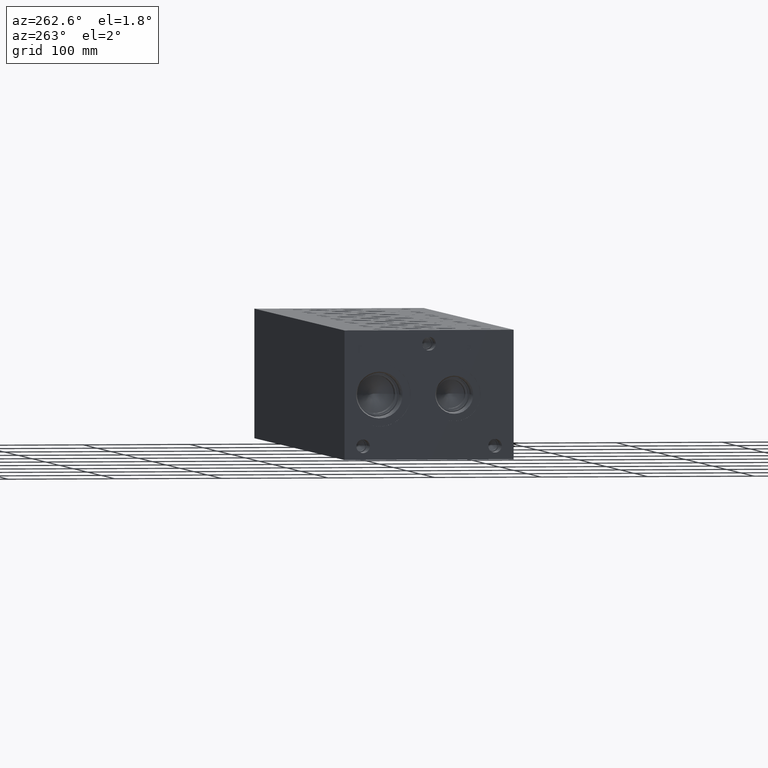
[diagram: clean part render]
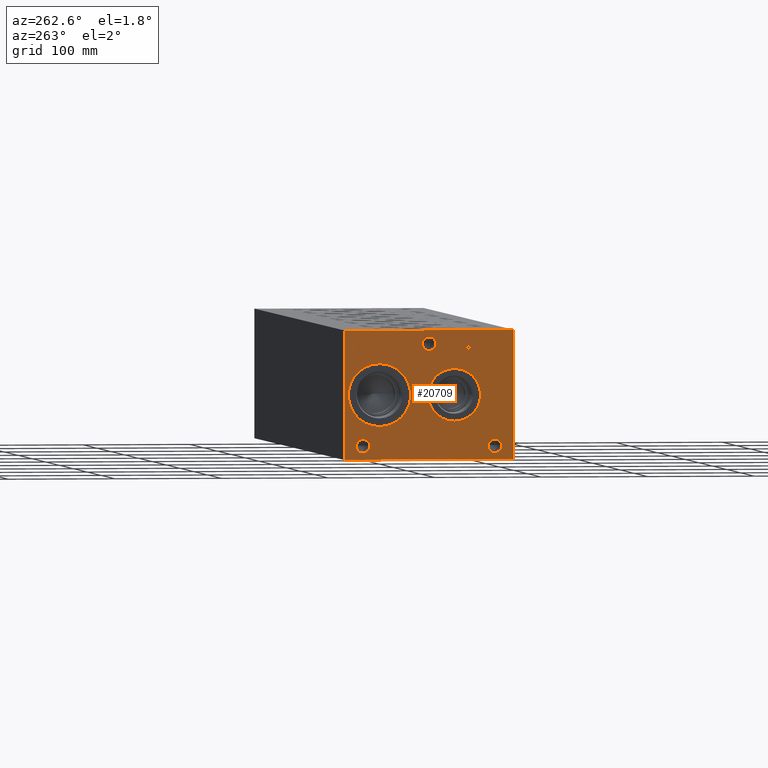
[diagram: same view with one face highlighted and labeled with its STEP entity id]
A machine part, auxiliary view. The second image highlights one B-rep face of the part: STEP entity #20709.
In plain terms, the highlighted planar face has unit normal (-1, 0, 0).
Its self-contained STEP definition (entity closure, byte-faithful):
#441=CIRCLE('',#21875,6.35);
#442=CIRCLE('',#21876,6.35);
#443=CIRCLE('',#21877,6.35);
#444=CIRCLE('',#21878,6.35);
#445=CIRCLE('',#21879,6.35);
#446=CIRCLE('',#21880,6.35);
#447=CIRCLE('',#21881,24.5618);
#448=CIRCLE('',#21882,24.5618);
#449=CIRCLE('',#21883,29.2862);
#450=CIRCLE('',#21884,29.2862);
#1287=FACE_BOUND('',#3341,.T.);
#1288=FACE_BOUND('',#3342,.T.);
#1289=FACE_BOUND('',#3343,.T.);
#1290=FACE_BOUND('',#3344,.T.);
#1291=FACE_BOUND('',#3345,.T.);
#1292=FACE_BOUND('',#3346,.T.);
#1293=FACE_BOUND('',#3347,.T.);
#1554=B_SPLINE_CURVE_WITH_KNOTS('',2,(#29473,#29474,#29475,#29476),
 .UNSPECIFIED.,.F.,.F.,(3,1,3),(0.,1.,2.),.UNSPECIFIED.);
#1556=B_SPLINE_CURVE_WITH_KNOTS('',2,(#29494,#29495,#29496,#29497),
 .UNSPECIFIED.,.F.,.F.,(3,1,3),(0.,1.,2.),.UNSPECIFIED.);
#1558=B_SPLINE_CURVE_WITH_KNOTS('',2,(#29543,#29544,#29545,#29546),
 .UNSPECIFIED.,.F.,.F.,(3,1,3),(0.,1.,2.),.UNSPECIFIED.);
#1560=B_SPLINE_CURVE_WITH_KNOTS('',2,(#29561,#29562,#29563,#29564),
 .UNSPECIFIED.,.F.,.F.,(3,1,3),(0.,1.,2.),.UNSPECIFIED.);
#2174=FACE_OUTER_BOUND('',#3340,.T.);
#3340=EDGE_LOOP('',(#13697,#13698,#13699,#13700));
#3341=EDGE_LOOP('',(#13701,#13702,#13703,#13704,#13705,#13706,#13707,#13708));
#3342=EDGE_LOOP('',(#13709,#13710));
#3343=EDGE_LOOP('',(#13711,#13712));
#3344=EDGE_LOOP('',(#13713,#13714));
#3345=EDGE_LOOP('',(#13715,#13716));
#3346=EDGE_LOOP('',(#13717,#13718));
#3347=EDGE_LOOP('',(#13719,#13720,#13721,#13722,#13723,#13724,#13725,#13726,
#13727));
#4747=LINE('',#29323,#6537);
#4751=LINE('',#29331,#6541);
#4754=LINE('',#29337,#6544);
#4757=LINE('',#29343,#6547);
#4760=LINE('',#29349,#6550);
#4763=LINE('',#29355,#6553);
#4766=LINE('',#29361,#6556);
#4769=LINE('',#29366,#6559);
#4787=LINE('',#29506,#6577);
#4790=LINE('',#29512,#6580);
#4793=LINE('',#29518,#6583);
#4796=LINE('',#29524,#6586);
#4799=LINE('',#29530,#6589);
#4803=LINE('',#29573,#6593);
#4804=LINE('',#29575,#6594);
#4805=LINE('',#29577,#6595);
#4806=LINE('',#29578,#6596);
#6537=VECTOR('',#23756,10.);
#6541=VECTOR('',#23762,10.);
#6544=VECTOR('',#23767,10.);
#6547=VECTOR('',#23772,10.);
#6550=VECTOR('',#23777,10.);
#6553=VECTOR('',#23782,10.);
#6556=VECTOR('',#23787,10.);
#6559=VECTOR('',#23792,10.);
#6577=VECTOR('',#23820,10.);
#6580=VECTOR('',#23825,10.);
#6583=VECTOR('',#23830,10.);
#6586=VECTOR('',#23835,10.);
#6589=VECTOR('',#23840,10.);
#6593=VECTOR('',#23848,10.);
#6594=VECTOR('',#23849,10.);
#6595=VECTOR('',#23850,10.);
#6596=VECTOR('',#23851,10.);
#8329=VERTEX_POINT('',#29321);
#8330=VERTEX_POINT('',#29322);
#8333=VERTEX_POINT('',#29330);
#8335=VERTEX_POINT('',#29336);
#8337=VERTEX_POINT('',#29342);
#8339=VERTEX_POINT('',#29348);
#8341=VERTEX_POINT('',#29354);
#8343=VERTEX_POINT('',#29360);
#8359=VERTEX_POINT('',#29471);
#8360=VERTEX_POINT('',#29472);
#8363=VERTEX_POINT('',#29493);
#8365=VERTEX_POINT('',#29505);
#8367=VERTEX_POINT('',#29511);
#8369=VERTEX_POINT('',#29517);
#8371=VERTEX_POINT('',#29523);
#8373=VERTEX_POINT('',#29529);
#8375=VERTEX_POINT('',#29542);
#8377=VERTEX_POINT('',#29571);
#8378=VERTEX_POINT('',#29572);
#8379=VERTEX_POINT('',#29574);
#8380=VERTEX_POINT('',#29576);
#8381=VERTEX_POINT('',#29579);
#8382=VERTEX_POINT('',#29580);
#8383=VERTEX_POINT('',#29583);
#8384=VERTEX_POINT('',#29584);
#8385=VERTEX_POINT('',#29587);
#8386=VERTEX_POINT('',#29588);
#8387=VERTEX_POINT('',#29591);
#8388=VERTEX_POINT('',#29592);
#8389=VERTEX_POINT('',#29595);
#8390=VERTEX_POINT('',#29596);
#10481=EDGE_CURVE('',#8329,#8330,#4747,.T.);
#10485=EDGE_CURVE('',#8333,#8329,#4751,.T.);
#10488=EDGE_CURVE('',#8335,#8333,#4754,.T.);
#10491=EDGE_CURVE('',#8337,#8335,#4757,.T.);
#10494=EDGE_CURVE('',#8339,#8337,#4760,.T.);
#10497=EDGE_CURVE('',#8341,#8339,#4763,.T.);
#10500=EDGE_CURVE('',#8343,#8341,#4766,.T.);
#10503=EDGE_CURVE('',#8330,#8343,#4769,.T.);
#10526=EDGE_CURVE('',#8359,#8360,#1554,.T.);
#10530=EDGE_CURVE('',#8363,#8359,#1556,.T.);
#10533=EDGE_CURVE('',#8365,#8363,#4787,.T.);
#10536=EDGE_CURVE('',#8367,#8365,#4790,.T.);
#10539=EDGE_CURVE('',#8369,#8367,#4793,.T.);
#10542=EDGE_CURVE('',#8371,#8369,#4796,.T.);
#10545=EDGE_CURVE('',#8373,#8371,#4799,.T.);
#10548=EDGE_CURVE('',#8375,#8373,#1558,.T.);
#10551=EDGE_CURVE('',#8360,#8375,#1560,.T.);
#10553=EDGE_CURVE('',#8377,#8378,#4803,.T.);
#10554=EDGE_CURVE('',#8378,#8379,#4804,.T.);
#10555=EDGE_CURVE('',#8380,#8379,#4805,.T.);
#10556=EDGE_CURVE('',#8377,#8380,#4806,.T.);
#10557=EDGE_CURVE('',#8381,#8382,#441,.T.);
#10558=EDGE_CURVE('',#8382,#8381,#442,.T.);
#10559=EDGE_CURVE('',#8383,#8384,#443,.T.);
#10560=EDGE_CURVE('',#8384,#8383,#444,.T.);
#10561=EDGE_CURVE('',#8385,#8386,#445,.T.);
#10562=EDGE_CURVE('',#8386,#8385,#446,.T.);
#10563=EDGE_CURVE('',#8387,#8388,#447,.T.);
#10564=EDGE_CURVE('',#8388,#8387,#448,.T.);
#10565=EDGE_CURVE('',#8389,#8390,#449,.T.);
#10566=EDGE_CURVE('',#8390,#8389,#450,.T.);
#13697=ORIENTED_EDGE('',*,*,#10553,.T.);
#13698=ORIENTED_EDGE('',*,*,#10554,.T.);
#13699=ORIENTED_EDGE('',*,*,#10555,.F.);
#13700=ORIENTED_EDGE('',*,*,#10556,.F.);
#13701=ORIENTED_EDGE('',*,*,#10481,.T.);
#13702=ORIENTED_EDGE('',*,*,#10503,.T.);
#13703=ORIENTED_EDGE('',*,*,#10500,.T.);
#13704=ORIENTED_EDGE('',*,*,#10497,.T.);
#13705=ORIENTED_EDGE('',*,*,#10494,.T.);
#13706=ORIENTED_EDGE('',*,*,#10491,.T.);
#13707=ORIENTED_EDGE('',*,*,#10488,.T.);
#13708=ORIENTED_EDGE('',*,*,#10485,.T.);
#13709=ORIENTED_EDGE('',*,*,#10557,.T.);
#13710=ORIENTED_EDGE('',*,*,#10558,.T.);
#13711=ORIENTED_EDGE('',*,*,#10559,.T.);
#13712=ORIENTED_EDGE('',*,*,#10560,.T.);
#13713=ORIENTED_EDGE('',*,*,#10561,.T.);
#13714=ORIENTED_EDGE('',*,*,#10562,.T.);
#13715=ORIENTED_EDGE('',*,*,#10563,.T.);
#13716=ORIENTED_EDGE('',*,*,#10564,.T.);
#13717=ORIENTED_EDGE('',*,*,#10565,.T.);
#13718=ORIENTED_EDGE('',*,*,#10566,.T.);
#13719=ORIENTED_EDGE('',*,*,#10526,.T.);
#13720=ORIENTED_EDGE('',*,*,#10551,.T.);
#13721=ORIENTED_EDGE('',*,*,#10548,.T.);
#13722=ORIENTED_EDGE('',*,*,#10545,.T.);
#13723=ORIENTED_EDGE('',*,*,#10542,.T.);
#13724=ORIENTED_EDGE('',*,*,#10539,.T.);
#13725=ORIENTED_EDGE('',*,*,#10536,.T.);
#13726=ORIENTED_EDGE('',*,*,#10533,.T.);
#13727=ORIENTED_EDGE('',*,*,#10530,.T.);
#19525=PLANE('',#21874);
#20709=ADVANCED_FACE('',(#2174,#1287,#1288,#1289,#1290,#1291,#1292,#1293),
#19525,.T.);
#21874=AXIS2_PLACEMENT_3D('',#29570,#23846,#23847);
#21875=AXIS2_PLACEMENT_3D('',#29581,#23852,#23853);
#21876=AXIS2_PLACEMENT_3D('',#29582,#23854,#23855);
#21877=AXIS2_PLACEMENT_3D('',#29585,#23856,#23857);
#21878=AXIS2_PLACEMENT_3D('',#29586,#23858,#23859);
#21879=AXIS2_PLACEMENT_3D('',#29589,#23860,#23861);
#21880=AXIS2_PLACEMENT_3D('',#29590,#23862,#23863);
#21881=AXIS2_PLACEMENT_3D('',#29593,#23864,#23865);
#21882=AXIS2_PLACEMENT_3D('',#29594,#23866,#23867);
#21883=AXIS2_PLACEMENT_3D('',#29597,#23868,#23869);
#21884=AXIS2_PLACEMENT_3D('',#29598,#23870,#23871);
#23756=DIRECTION('',(0.,1.,2.1048822476866E-14));
#23762=DIRECTION('',(0.,3.17280044688051E-15,-1.));
#23767=DIRECTION('',(0.,1.,8.33818088455555E-15));
#23772=DIRECTION('',(0.,0.,-1.));
#23777=DIRECTION('',(0.,-1.,-3.47984565141734E-15));
#23782=DIRECTION('',(0.,0.,1.));
#23787=DIRECTION('',(0.,1.,0.));
#23792=DIRECTION('',(0.,-3.17280044688052E-15,1.));
#23820=DIRECTION('',(0.,-1.,0.));
#23825=DIRECTION('',(0.,-2.79741238752512E-15,1.));
#23830=DIRECTION('',(0.,1.,0.));
#23835=DIRECTION('',(0.,0.,-1.));
#23840=DIRECTION('',(0.,1.,0.));
#23846=DIRECTION('center_axis',(-1.,0.,0.));
#23847=DIRECTION('ref_axis',(0.,-1.,0.));
#23848=DIRECTION('',(0.,-1.,0.));
#23849=DIRECTION('',(0.,0.,1.));
#23850=DIRECTION('',(0.,-1.,0.));
#23851=DIRECTION('',(0.,0.,1.));
#23852=DIRECTION('center_axis',(1.,0.,0.));
#23853=DIRECTION('ref_axis',(0.,1.,0.));
#23854=DIRECTION('center_axis',(1.,0.,0.));
#23855=DIRECTION('ref_axis',(0.,1.,0.));
#23856=DIRECTION('center_axis',(1.,0.,0.));
#23857=DIRECTION('ref_axis',(0.,1.,0.));
#23858=DIRECTION('center_axis',(1.,0.,0.));
#23859=DIRECTION('ref_axis',(0.,1.,0.));
#23860=DIRECTION('center_axis',(1.,0.,0.));
#23861=DIRECTION('ref_axis',(0.,1.,0.));
#23862=DIRECTION('center_axis',(1.,0.,0.));
#23863=DIRECTION('ref_axis',(0.,1.,0.));
#23864=DIRECTION('center_axis',(1.,0.,0.));
#23865=DIRECTION('ref_axis',(0.,0.,1.));
#23866=DIRECTION('center_axis',(1.,0.,0.));
#23867=DIRECTION('ref_axis',(0.,0.,1.));
#23868=DIRECTION('center_axis',(1.,0.,0.));
#23869=DIRECTION('ref_axis',(0.,0.,1.));
#23870=DIRECTION('center_axis',(1.,0.,0.));
#23871=DIRECTION('ref_axis',(0.,0.,1.));
#29321=CARTESIAN_POINT('',(0.,144.668334728547,100.0125));
#29322=CARTESIAN_POINT('',(0.,145.512256920086,100.0125));
#29323=CARTESIAN_POINT('',(0.,151.709167364272,100.0125));
#29330=CARTESIAN_POINT('',(0.,144.668334728547,105.611203319482));
#29331=CARTESIAN_POINT('',(0.,144.668334728547,52.8056016597407));
#29336=CARTESIAN_POINT('',(0.,142.537945781612,105.611203319482));
#29337=CARTESIAN_POINT('',(0.,150.643972890806,105.611203319482));
#29342=CARTESIAN_POINT('',(0.,142.537945781612,106.362499904633));
#29343=CARTESIAN_POINT('',(0.,142.537945781612,53.1812499523163));
#29348=CARTESIAN_POINT('',(0.,147.642645867022,106.362499904633));
#29349=CARTESIAN_POINT('',(0.,153.196322933511,106.362499904633));
#29354=CARTESIAN_POINT('',(0.,147.642645867022,105.611203319482));
#29355=CARTESIAN_POINT('',(0.,147.642645867022,52.8056016597408));
#29360=CARTESIAN_POINT('',(0.,145.512256920086,105.611203319482));
#29361=CARTESIAN_POINT('',(0.,152.131128460043,105.611203319482));
#29366=CARTESIAN_POINT('',(0.,145.512256920087,50.00625));
#29471=CARTESIAN_POINT('',(0.,40.7526327976406,105.902768143971));
#29472=CARTESIAN_POINT('',(0.,39.996190345468,104.384737372604));
#29473=CARTESIAN_POINT('Ctrl Pts',(0.,40.7526327976406,105.902768143971));
#29474=CARTESIAN_POINT('Ctrl Pts',(0.,40.3975679731514,105.660912393956));
#29475=CARTESIAN_POINT('Ctrl Pts',(0.,39.996190345468,104.914761675827));
#29476=CARTESIAN_POINT('Ctrl Pts',(0.,39.996190345468,104.384737372604));
#29493=CARTESIAN_POINT('',(0.,42.4147478456117,106.298999904633));
#29494=CARTESIAN_POINT('Ctrl Pts',(0.,42.4147478456117,106.298999904633));
#29495=CARTESIAN_POINT('Ctrl Pts',(0.,41.8487024732376,106.298999904633));
#29496=CARTESIAN_POINT('Ctrl Pts',(0.,41.056238951914,106.113748691856));
#29497=CARTESIAN_POINT('Ctrl Pts',(0.,40.7526327976406,105.902768143971));
#29505=CARTESIAN_POINT('',(0.,44.0099666223022,106.298999904633));
#29506=CARTESIAN_POINT('',(0.,101.379983311151,106.298999904633));
#29511=CARTESIAN_POINT('',(0.,44.0099666223022,99.949));
#29512=CARTESIAN_POINT('',(0.,44.0099666223023,49.9744999999998));
#29517=CARTESIAN_POINT('',(0.,43.1660444307627,99.949));
#29518=CARTESIAN_POINT('',(0.,100.958022215381,99.949));
#29523=CARTESIAN_POINT('',(0.,43.1660444307627,102.316098829928));
#29524=CARTESIAN_POINT('',(0.,43.1660444307627,51.1580494149639));
#29529=CARTESIAN_POINT('',(0.,42.4507689147628,102.316098829928));
#29530=CARTESIAN_POINT('',(0.,100.600384457381,102.316098829928));
#29542=CARTESIAN_POINT('',(0.,40.5519439837989,102.97476980869));
#29543=CARTESIAN_POINT('Ctrl Pts',(0.,40.5519439837989,102.97476980869));
#29544=CARTESIAN_POINT('Ctrl Pts',(0.,40.8812794731802,102.650580186331));
#29545=CARTESIAN_POINT('Ctrl Pts',(0.,41.7715144679139,102.316098829928));
#29546=CARTESIAN_POINT('Ctrl Pts',(0.,42.4507689147628,102.316098829928));
#29561=CARTESIAN_POINT('Ctrl Pts',(0.,39.996190345468,104.384737372604));
#29562=CARTESIAN_POINT('Ctrl Pts',(0.,39.996190345468,103.973068010877));
#29563=CARTESIAN_POINT('Ctrl Pts',(0.,40.2895047656982,103.23206315977));
#29564=CARTESIAN_POINT('Ctrl Pts',(0.,40.5519439837989,102.97476980869));
#29570=CARTESIAN_POINT('Origin',(0.,158.75,0.));
#29571=CARTESIAN_POINT('',(0.,158.75,0.));
#29572=CARTESIAN_POINT('',(0.,0.,0.));
#29573=CARTESIAN_POINT('',(0.,158.75,0.));
#29574=CARTESIAN_POINT('',(0.,0.,120.65));
#29575=CARTESIAN_POINT('',(0.,0.,0.));
#29576=CARTESIAN_POINT('',(0.,158.75,120.65));
#29577=CARTESIAN_POINT('',(0.,158.75,120.65));
#29578=CARTESIAN_POINT('',(0.,158.75,0.));
#29579=CARTESIAN_POINT('',(0.,85.725,107.95));
#29580=CARTESIAN_POINT('',(0.,73.025,107.95));
#29581=CARTESIAN_POINT('Origin',(0.,79.375,107.95));
#29582=CARTESIAN_POINT('Origin',(0.,79.375,107.95));
#29583=CARTESIAN_POINT('',(0.,147.6248,12.7));
#29584=CARTESIAN_POINT('',(0.,134.9248,12.7));
#29585=CARTESIAN_POINT('Origin',(0.,141.2748,12.7));
#29586=CARTESIAN_POINT('Origin',(0.,141.2748,12.7));
#29587=CARTESIAN_POINT('',(0.,23.8252,12.7));
#29588=CARTESIAN_POINT('',(0.,11.1252,12.7));
#29589=CARTESIAN_POINT('Origin',(0.,17.4752,12.7));
#29590=CARTESIAN_POINT('Origin',(0.,17.4752,12.7));
#29591=CARTESIAN_POINT('',(0.,55.5752,84.8868));
#29592=CARTESIAN_POINT('',(6.93889390390723E-17,55.5752,35.7632));
#29593=CARTESIAN_POINT('Origin',(0.,55.5752,60.325));
#29594=CARTESIAN_POINT('Origin',(0.,55.5752,60.325));
#29595=CARTESIAN_POINT('',(0.,125.8316,89.6112));
#29596=CARTESIAN_POINT('',(0.,125.8316,31.0388));
#29597=CARTESIAN_POINT('Origin',(0.,125.8316,60.325));
#29598=CARTESIAN_POINT('Origin',(0.,125.8316,60.325));